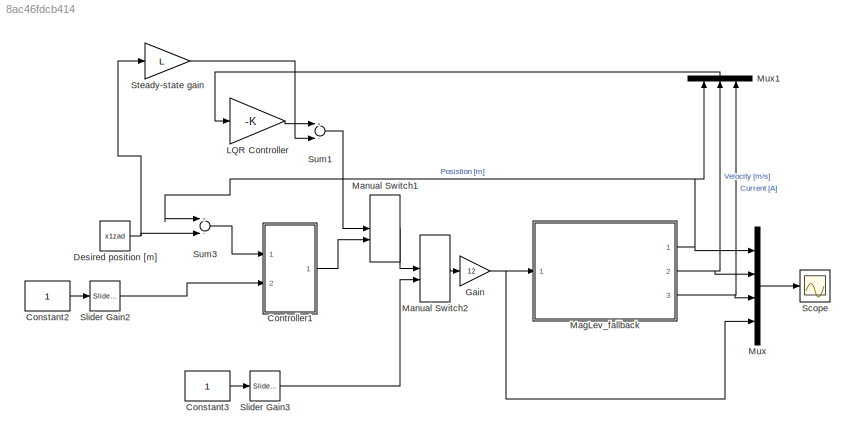
MODEL slx_8ac46fdcb414
KIND model
CONFIG AbsTol = auto
CONFIG FixedStep = auto
CONFIG MaxStep = auto
CONFIG MinStep = auto
CONFIG RelTol = 1e-3
CONFIG SampleTimeConstraint = Unconstrained
CONFIG Solver = VariableStepAuto
CONFIG SolverMode = Auto
CONFIG SolverName = VariableStepAuto
CONFIG StartTime = 0.0
CONFIG StopTime = 10.0
BLOCK [Constant] Constant2
BLOCK [Constant] Constant3
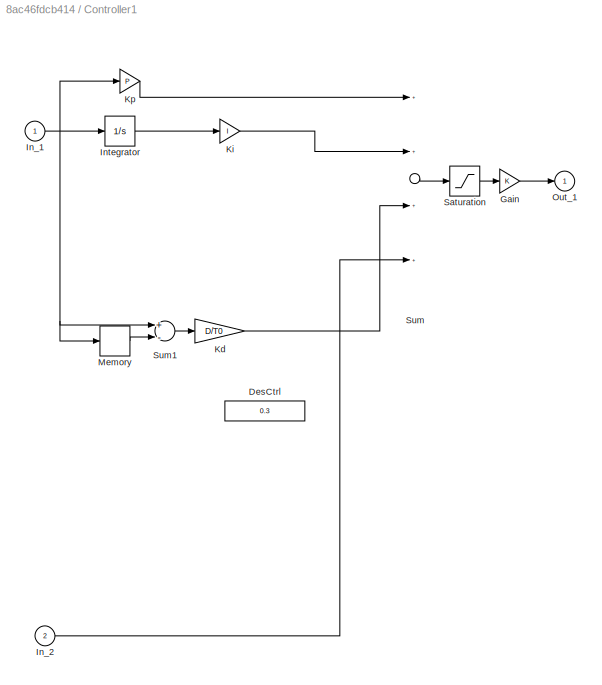
BLOCK [SubSystem] Controller1
  Ports = [2, 1]
  RequestExecContextInheritance = off
  Variant = off
BLOCK [Constant] Controller1/DesCtrl
  Value = 0.3
BLOCK [Gain] Controller1/Gain
BLOCK [Inport] Controller1/In_1
  IconDisplay = Port number
BLOCK [Inport] Controller1/In_2
  IconDisplay = Port number
  Port = 2
BLOCK [Integrator] Controller1/Integrator
  InitialCondition = 0*4e-5
  LimitOutput = on
  LowerSaturationLimit = -1
  Ports = [1, 1]
  UpperSaturationLimit = 1
BLOCK [Gain] Controller1/Kd
  Gain = D/T0
BLOCK [Gain] Controller1/Ki
  Gain = I
BLOCK [Gain] Controller1/Kp
  Gain = P
BLOCK [Memory] Controller1/Memory
BLOCK [Outport] Controller1/Out_1
  IconDisplay = Port number
  InitialOutput = 0
BLOCK [Saturate] Controller1/Saturation
  InputPortMap = u0
  LowerLimit = 0
  Ports = [1, 1]
  UpperLimit = 1
BLOCK [Sum] Controller1/Sum
  Inputs = ++++
  Ports = [4, 1]
BLOCK [Sum] Controller1/Sum1
  Inputs = +-
  Ports = [2, 1]
BLOCK [Constant] Desired position [m] 
  Value = x1zad
BLOCK [Gain] Gain
  Gain = 12
  OutDataTypeStr = Inherit: Inherit via internal rule
  ParamDataTypeStr = Inherit: Inherit via internal rule
  SaturateOnIntegerOverflow = off
BLOCK [Gain] LQR Controller
  Gain = -K
  Multiplication = Matrix(K*u)
  OutDataTypeStr = Inherit: Inherit via internal rule
  ParamDataTypeStr = Inherit: Inherit via internal rule
  SaturateOnIntegerOverflow = off
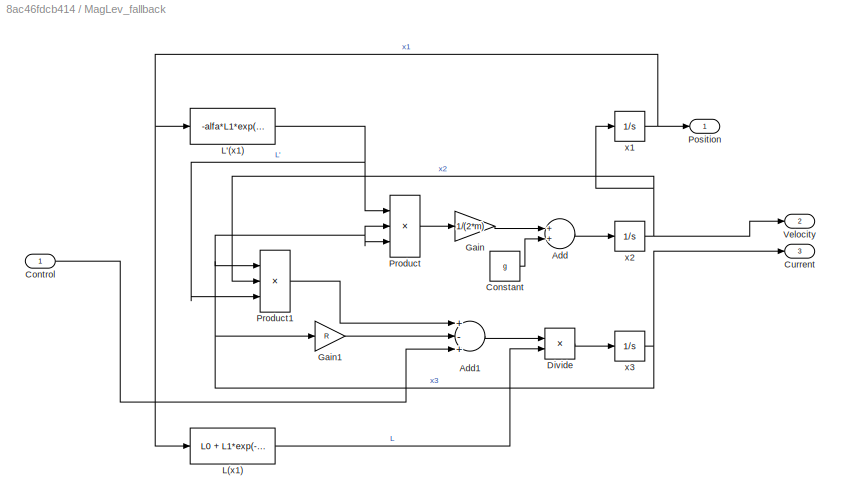
BLOCK [SubSystem] MagLev_fallback
  Ports = [1, 3]
  RequestExecContextInheritance = off
  Variant = off
BLOCK [Sum] MagLev_fallback/Add
  InputSameDT = off
  OutDataTypeStr = Inherit: Inherit via internal rule
  Ports = [2, 1]
  SaturateOnIntegerOverflow = off
BLOCK [Sum] MagLev_fallback/Add1
  InputSameDT = off
  Inputs = +-+
  OutDataTypeStr = Inherit: Inherit via internal rule
  Ports = [3, 1]
  SaturateOnIntegerOverflow = off
BLOCK [Constant] MagLev_fallback/Constant
  Value = g
BLOCK [Inport] MagLev_fallback/Control
  IconDisplay = Port number
BLOCK [Outport] MagLev_fallback/Current
  IconDisplay = Port number
  Port = 3
BLOCK [Product] MagLev_fallback/Divide
  InputSameDT = off
  Inputs = */
  OutDataTypeStr = Inherit: Inherit via internal rule
  Ports = [2, 1]
  RndMeth = Floor
  SaturateOnIntegerOverflow = off
BLOCK [Gain] MagLev_fallback/Gain
  Gain = 1/(2*m)
  OutDataTypeStr = Inherit: Inherit via internal rule
  ParamDataTypeStr = Inherit: Inherit via internal rule
  SaturateOnIntegerOverflow = off
BLOCK [Gain] MagLev_fallback/Gain1
  Gain = R
  OutDataTypeStr = Inherit: Inherit via internal rule
  ParamDataTypeStr = Inherit: Inherit via internal rule
  SaturateOnIntegerOverflow = off
BLOCK [Fcn] MagLev_fallback/L'(x1)
  Expr = -alfa*L1*exp(-alfa*u)
BLOCK [Fcn] MagLev_fallback/L(x1)
  Expr = L0 + L1*exp(-alfa*u)
BLOCK [Outport] MagLev_fallback/Position
  IconDisplay = Port number
BLOCK [Product] MagLev_fallback/Product
  InputSameDT = off
  Inputs = 3
  OutDataTypeStr = Inherit: Inherit via internal rule
  Ports = [3, 1]
  RndMeth = Floor
  SaturateOnIntegerOverflow = off
BLOCK [Product] MagLev_fallback/Product1
  InputSameDT = off
  Inputs = 3
  OutDataTypeStr = Inherit: Inherit via internal rule
  Ports = [3, 1]
  RndMeth = Floor
  SaturateOnIntegerOverflow = off
BLOCK [Outport] MagLev_fallback/Velocity 
  IconDisplay = Port number
  Port = 2
BLOCK [Integrator] MagLev_fallback/x1
  Ports = [1, 1]
BLOCK [Integrator] MagLev_fallback/x2
  Ports = [1, 1]
BLOCK [Integrator] MagLev_fallback/x3
  Ports = [1, 1]
BLOCK [ManualSwitch] Manual Switch1
BLOCK [ManualSwitch] Manual Switch2
BLOCK [Mux] Mux
  DisplayOption = bar
  Ports = [4, 1]
BLOCK [Mux] Mux1
  DisplayOption = bar
  Inputs = 3
  Ports = [3, 1]
BLOCK [Scope] Scope
  Ports = [1]
  ScopeSpecificationString = Simulink.scopes.TimeScopeBlockCfg('CurrentConfiguration', extmgr.ConfigurationSet(extmgr.Configuration('Core','General UI',true),extmgr.Configuration('Core','Source UI',true),extmgr.Configuration('Sources','WiredSimulink',true),extmgr.Configuration('Visuals','Time Domain',true,'SerializedDisplays',{struct('MinYLimReal','-755.21572','MaxYLimReal','6782.54144','YLabelReal','','MinYLimMag',' 0.00000'...<+1431ch>
BLOCK [Reference] Slider Gain2  REF=simulink/Math
Operations/Slider
Gain
  Ports = [1, 1]
  SourceBlock = simulink/Math\nOperations/Slider\nGain
  SourceType = Slider Gain
BLOCK [Reference] Slider Gain3  REF=simulink/Math
Operations/Slider
Gain
  Ports = [1, 1]
  SourceBlock = simulink/Math\nOperations/Slider\nGain
  SourceType = Slider Gain
BLOCK [Gain] Steady-state gain
  Gain = L
  OutDataTypeStr = Inherit: Inherit via internal rule
  ParamDataTypeStr = Inherit: Inherit via internal rule
  SaturateOnIntegerOverflow = off
BLOCK [Sum] Sum1
  Inputs = +-
  Ports = [2, 1]
BLOCK [Sum] Sum3
  Inputs = +-
  Ports = [2, 1]
LINE Constant2:1 -> Slider Gain2:1
LINE Constant3:1 -> Slider Gain3:1
LINE Controller1/Gain:1 -> Controller1/Out_1:1
NET Controller1/In_1:1 -> Controller1/Integrator:1, Controller1/Kp:1, Controller1/Memory:1, Controller1/Sum1:1
LINE Controller1/In_2:1 -> Controller1/Sum:4
LINE Controller1/Integrator:1 -> Controller1/Ki:1
LINE Controller1/Kd:1 -> Controller1/Sum:3
LINE Controller1/Ki:1 -> Controller1/Sum:2
LINE Controller1/Kp:1 -> Controller1/Sum:1
LINE Controller1/Memory:1 -> Controller1/Sum1:2
LINE Controller1/Saturation:1 -> Controller1/Gain:1
LINE Controller1/Sum1:1 -> Controller1/Kd:1
LINE Controller1/Sum:1 -> Controller1/Saturation:1
LINE Controller1:1 -> Manual Switch1:2
NET Desired position [m] :1 -> Steady-state gain:1, Sum3:2
NET Gain:1 -> MagLev_fallback:1, Mux:4
LINE LQR Controller:1 -> Sum1:1
LINE MagLev_fallback/Add1:1 -> MagLev_fallback/Divide:1
LINE MagLev_fallback/Add:1 -> MagLev_fallback/x2:1
LINE MagLev_fallback/Constant:1 -> MagLev_fallback/Add:2
LINE MagLev_fallback/Control:1 -> MagLev_fallback/Add1:3
LINE MagLev_fallback/Divide:1 -> MagLev_fallback/x3:1
LINE MagLev_fallback/Gain1:1 -> MagLev_fallback/Add1:2
LINE MagLev_fallback/Gain:1 -> MagLev_fallback/Add:1
NET MagLev_fallback/L'(x1):1 -> MagLev_fallback/Product1:3, MagLev_fallback/Product:1
LINE MagLev_fallback/L(x1):1 -> MagLev_fallback/Divide:2
LINE MagLev_fallback/Product1:1 -> MagLev_fallback/Add1:1
LINE MagLev_fallback/Product:1 -> MagLev_fallback/Gain:1
NET MagLev_fallback/x1:1 -> MagLev_fallback/L'(x1):1, MagLev_fallback/L(x1):1, MagLev_fallback/Position:1
NET MagLev_fallback/x2:1 -> MagLev_fallback/Product1:2, MagLev_fallback/Velocity :1, MagLev_fallback/x1:1
NET MagLev_fallback/x3:1 -> MagLev_fallback/Current:1, MagLev_fallback/Gain1:1, MagLev_fallback/Product1:1, MagLev_fallback/Product:2, MagLev_fallback/Product:3
NET MagLev_fallback:1 -> Mux1:1, Mux:1, Sum3:1
NET MagLev_fallback:2 -> Mux1:2, Mux:2
NET MagLev_fallback:3 -> Mux1:3, Mux:3
LINE Manual Switch1:1 -> Manual Switch2:1
LINE Manual Switch2:1 -> Gain:1
LINE Mux1:1 -> LQR Controller:1
LINE Mux:1 -> Scope:1
LINE Slider Gain2:1 -> Controller1:2
LINE Slider Gain3:1 -> Manual Switch2:2
LINE Steady-state gain:1 -> Sum1:2
LINE Sum1:1 -> Manual Switch1:1
LINE Sum3:1 -> Controller1:1
note: NET lines group one-source signal fan-out (src -> all destinations, sorted); 1:1 wires keep LINE
